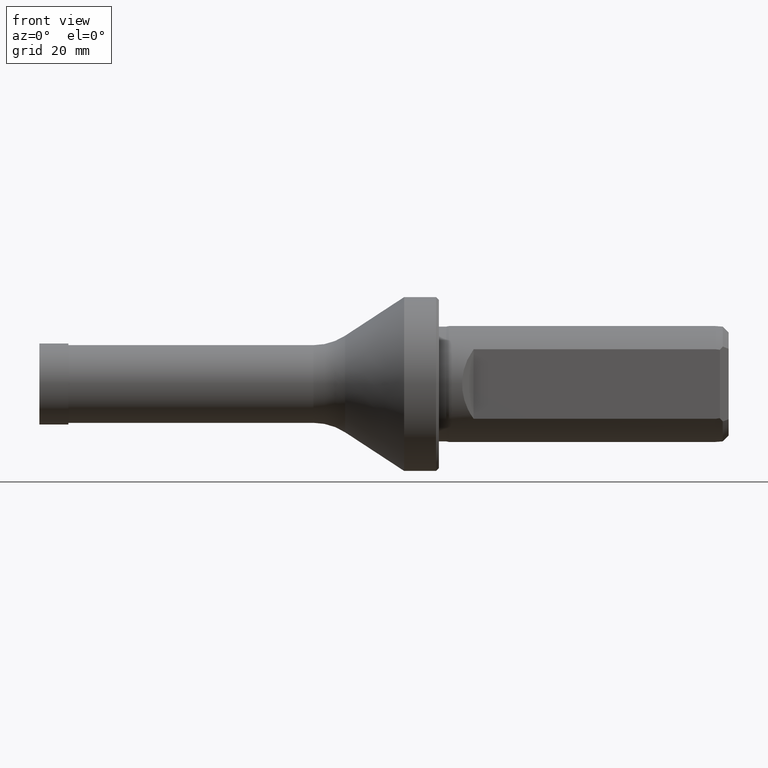
[diagram: clean part render]
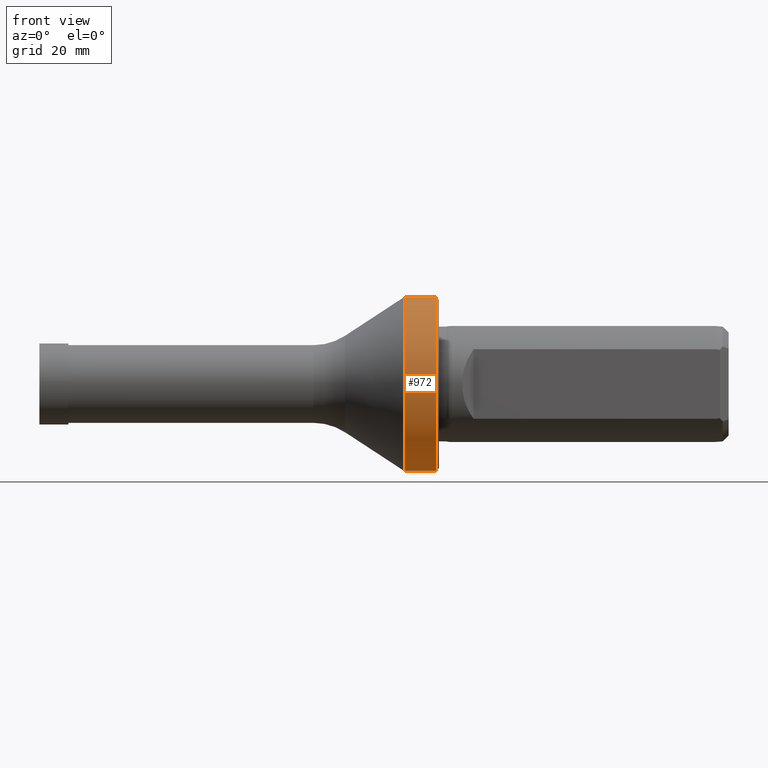
[diagram: same view with one face highlighted and labeled with its STEP entity id]
A machine part, front view. The second image highlights one B-rep face of the part: STEP entity #972.
In plain terms, the highlighted cylindrical surface (partial cylindrical patch) has radius 15 mm, axis along (-1, -0, -0).
Its self-contained STEP definition (entity closure, byte-faithful):
#40 = CARTESIAN_POINT ( 'NONE',  ( 67.95000000000003100, 0.0000000000000000000, 15.00000000000000000 ) ) ;
#47 = VERTEX_POINT ( 'NONE', #1052 ) ;
#48 = AXIS2_PLACEMENT_3D ( 'NONE', #180, #181, #183 ) ;
#56 = AXIS2_PLACEMENT_3D ( 'NONE', #164, #166, #170 ) ;
#84 = ORIENTED_EDGE ( 'NONE', *, *, #818, .T. ) ;
#89 = AXIS2_PLACEMENT_3D ( 'NONE', #286, #656, #289 ) ;
#164 = CARTESIAN_POINT ( 'NONE',  ( 62.44999999999999600, 0.0000000000000000000, 0.0000000000000000000 ) ) ;
#166 = DIRECTION ( 'NONE',  ( -1.000000000000000000, -0.0000000000000000000, -0.0000000000000000000 ) ) ;
#170 = DIRECTION ( 'NONE',  ( 0.0000000000000000000, 0.0000000000000000000, 1.000000000000000000 ) ) ;
#180 = CARTESIAN_POINT ( 'NONE',  ( 67.95000000000003100, 0.0000000000000000000, 0.0000000000000000000 ) ) ;
#181 = DIRECTION ( 'NONE',  ( -1.000000000000000000, -0.0000000000000000000, -0.0000000000000000000 ) ) ;
#183 = DIRECTION ( 'NONE',  ( 0.0000000000000000000, 0.0000000000000000000, 1.000000000000000000 ) ) ;
#219 = ORIENTED_EDGE ( 'NONE', *, *, #999, .F. ) ;
#234 = DIRECTION ( 'NONE',  ( -1.000000000000000000, -0.0000000000000000000, -0.0000000000000000000 ) ) ;
#252 = VERTEX_POINT ( 'NONE', #40 ) ;
#282 = CARTESIAN_POINT ( 'NONE',  ( 0.0000000000000000000, 0.0000000000000000000, 15.00000000000000000 ) ) ;
#286 = CARTESIAN_POINT ( 'NONE',  ( 0.0000000000000000000, 0.0000000000000000000, 0.0000000000000000000 ) ) ;
#289 = DIRECTION ( 'NONE',  ( 0.0000000000000000000, 0.0000000000000000000, 1.000000000000000000 ) ) ;
#464 = CIRCLE ( 'NONE', #56, 15.00000000000000000 ) ;
#472 = CIRCLE ( 'NONE', #48, 15.00000000000000000 ) ;
#506 = VERTEX_POINT ( 'NONE', #836 ) ;
#508 = CYLINDRICAL_SURFACE ( 'NONE', #89, 15.00000000000000000 ) ;
#521 = FACE_OUTER_BOUND ( 'NONE', #770, .T. ) ;
#656 = DIRECTION ( 'NONE',  ( -1.000000000000000000, -0.0000000000000000000, -0.0000000000000000000 ) ) ;
#682 = VECTOR ( 'NONE', #234, 1000.000000000000000 ) ;
#683 = LINE ( 'NONE', #282, #682 ) ;
#696 = EDGE_CURVE ( 'NONE', #47, #506, #874, .T. ) ;
#750 = VERTEX_POINT ( 'NONE', #1182 ) ;
#770 = EDGE_LOOP ( 'NONE', ( #1189, #1201, #84, #219 ) ) ;
#818 = EDGE_CURVE ( 'NONE', #252, #750, #683, .T. ) ;
#836 = CARTESIAN_POINT ( 'NONE',  ( 62.44999999999999600, 0.0000000000000000000, -15.00000000000000000 ) ) ;
#869 = VECTOR ( 'NONE', #1133, 1000.000000000000000 ) ;
#874 = LINE ( 'NONE', #1116, #869 ) ;
#972 = ADVANCED_FACE ( 'NONE', ( #521 ), #508, .T. ) ;
#999 = EDGE_CURVE ( 'NONE', #506, #750, #464, .T. ) ;
#1010 = EDGE_CURVE ( 'NONE', #47, #252, #472, .T. ) ;
#1052 = CARTESIAN_POINT ( 'NONE',  ( 67.95000000000003100, 1.836970198721029600E-015, -15.00000000000000000 ) ) ;
#1116 = CARTESIAN_POINT ( 'NONE',  ( 0.0000000000000000000, 1.836970198721029600E-015, -15.00000000000000000 ) ) ;
#1133 = DIRECTION ( 'NONE',  ( -1.000000000000000000, -0.0000000000000000000, -0.0000000000000000000 ) ) ;
#1182 = CARTESIAN_POINT ( 'NONE',  ( 62.44999999999999600, 1.836970198721029600E-015, 15.00000000000000000 ) ) ;
#1189 = ORIENTED_EDGE ( 'NONE', *, *, #696, .F. ) ;
#1201 = ORIENTED_EDGE ( 'NONE', *, *, #1010, .T. ) ;